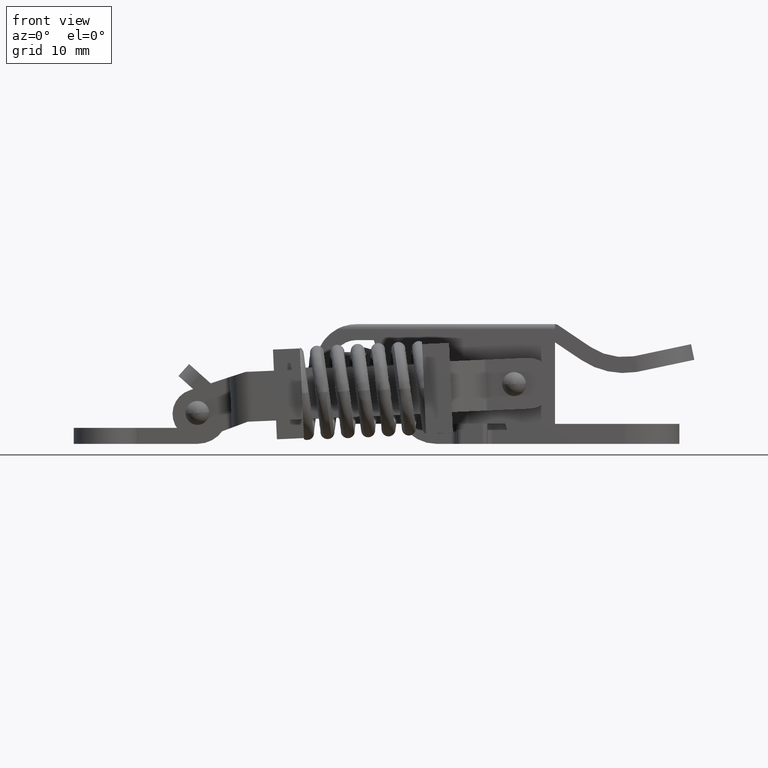
[diagram: clean part render]
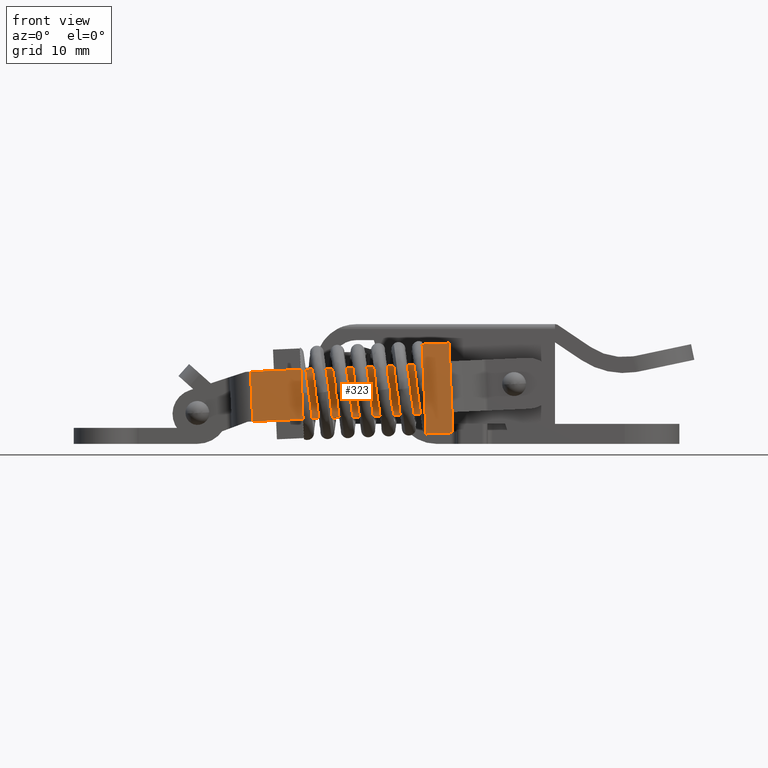
[diagram: same view with one face highlighted and labeled with its STEP entity id]
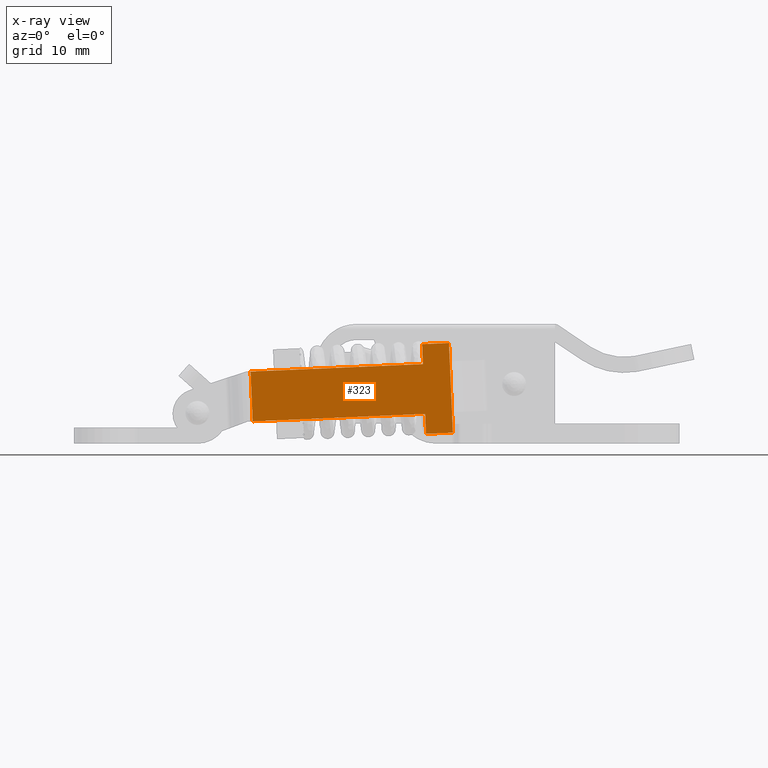
[diagram: x-ray of the same camera — body ghosted, the highlighted face saturated]
A machine part, front view. The second image highlights one B-rep face of the part: STEP entity #323.
The next image is the same camera in x-ray: the body ghosted, the highlighted face saturated — about 0% of this face is hidden behind the body in this view.
In plain terms, the highlighted planar face has unit normal (0, 1, 0).
Its self-contained STEP definition (entity closure, byte-faithful):
#323=ADVANCED_FACE('',(#949),#948,.F.);
#948=PLANE('',#4731);
#949=FACE_OUTER_BOUND('',#4732,.T.);
#4728=CARTESIAN_POINT('',(-1.53500000000E+01,5.39999999994E+00,1.99999999994E+00));
#4729=DIRECTION('',(1.00000000000E+00,0.00000000000E+00,-0.00000000000E+00));
#4730=DIRECTION('',(0.00000000000E+00,0.00000000000E+00,1.00000000000E+00));
#4731=AXIS2_PLACEMENT_3D('',#4728,#4729,#4730);
#4732=EDGE_LOOP('',(#12739,#12740,#12741,#12742,#12743,#12744,#12745,#12746));
#12739=ORIENTED_EDGE('',*,*,#14586,.T.);
#12740=ORIENTED_EDGE('',*,*,#14510,.T.);
#12741=ORIENTED_EDGE('',*,*,#14503,.T.);
#12742=ORIENTED_EDGE('',*,*,#14507,.T.);
#12743=ORIENTED_EDGE('',*,*,#14587,.T.);
#12744=ORIENTED_EDGE('',*,*,#14588,.T.);
#12745=ORIENTED_EDGE('',*,*,#14589,.T.);
#12746=ORIENTED_EDGE('',*,*,#14582,.F.);
#14503=EDGE_CURVE('',#15452,#15453,#15454,.T.);
#14507=EDGE_CURVE('',#15453,#15480,#15481,.T.);
#14510=EDGE_CURVE('',#15500,#15452,#15501,.T.);
#14582=EDGE_CURVE('',#15978,#15985,#15986,.T.);
#14586=EDGE_CURVE('',#15978,#15500,#16012,.T.);
#14587=EDGE_CURVE('',#15480,#16018,#16019,.T.);
#14588=EDGE_CURVE('',#16018,#16025,#16026,.T.);
#14589=EDGE_CURVE('',#16025,#15985,#16032,.T.);
#15452=VERTEX_POINT('',#21728);
#15453=VERTEX_POINT('',#21729);
#15454=LINE('',#21730,#21731);
#15480=VERTEX_POINT('',#21744);
#15481=LINE('',#21745,#21746);
#15500=VERTEX_POINT('',#21755);
#15501=LINE('',#21756,#21757);
#15978=VERTEX_POINT('',#22033);
#15985=VERTEX_POINT('',#22038);
#15986=LINE('',#22039,#22040);
#16012=LINE('',#22054,#22055);
#16018=VERTEX_POINT('',#22057);
#16019=LINE('',#22058,#22059);
#16025=VERTEX_POINT('',#22061);
#16026=LINE('',#22062,#22063);
#16032=LINE('',#22065,#22066);
#21728=CARTESIAN_POINT('',(-1.53500000000E+01,4.49999999994E+00,6.69999999995E+00));
#21729=CARTESIAN_POINT('',(-1.53500000000E+01,4.49999999994E+00,3.99999999995E+00));
#21730=CARTESIAN_POINT('',(-1.53500000000E+01,4.49999999994E+00,6.69999999995E+00));
#21731=VECTOR('',#21732,2.70000000000E+00);
#21732=DIRECTION('',(0.00000000000E+00,0.00000000000E+00,-1.00000000000E+00));
#21744=CARTESIAN_POINT('',(-1.53500000000E+01,-4.50000000006E+00,3.99999999995E+00));
#21745=CARTESIAN_POINT('',(-1.53500000000E+01,4.49999999994E+00,3.99999999995E+00));
#21746=VECTOR('',#21747,9.00000000000E+00);
#21747=DIRECTION('',(0.00000000000E+00,-1.00000000000E+00,0.00000000000E+00));
#21755=CARTESIAN_POINT('',(-1.53500000000E+01,2.49999999996E+00,6.69999999995E+00));
#21756=CARTESIAN_POINT('',(-1.53500000000E+01,2.49999999996E+00,6.69999999995E+00));
#21757=VECTOR('',#21758,1.99999999998E+00);
#21758=DIRECTION('',(0.00000000000E+00,1.00000000000E+00,0.00000000000E+00));
#22033=CARTESIAN_POINT('',(-1.53500000000E+01,2.49999999998E+00,2.40000000000E+01));
#22038=CARTESIAN_POINT('',(-1.53500000000E+01,-2.50000000002E+00,2.40000000000E+01));
#22039=CARTESIAN_POINT('',(-1.53500000000E+01,2.49999999998E+00,2.40000000000E+01));
#22040=VECTOR('',#22041,5.00000000000E+00);
#22041=DIRECTION('',(0.00000000000E+00,-1.00000000000E+00,0.00000000000E+00));
#22054=CARTESIAN_POINT('',(-1.53500000000E+01,2.49999999998E+00,2.40000000000E+01));
#22055=VECTOR('',#22056,1.73000000000E+01);
#22056=DIRECTION('',(0.00000000000E+00,-1.15606945981E-12,-1.00000000000E+00));
#22057=CARTESIAN_POINT('',(-1.53500000000E+01,-4.50000000006E+00,6.69999999995E+00));
#22058=CARTESIAN_POINT('',(-1.53500000000E+01,-4.50000000006E+00,3.99999999995E+00));
#22059=VECTOR('',#22060,2.70000000000E+00);
#22060=DIRECTION('',(0.00000000000E+00,0.00000000000E+00,1.00000000000E+00));
#22061=CARTESIAN_POINT('',(-1.53500000000E+01,-2.50000000004E+00,6.69999999995E+00));
#22062=CARTESIAN_POINT('',(-1.53500000000E+01,-4.50000000006E+00,6.69999999995E+00));
#22063=VECTOR('',#22064,2.00000000002E+00);
#22064=DIRECTION('',(0.00000000000E+00,1.00000000000E+00,0.00000000000E+00));
#22065=CARTESIAN_POINT('',(-1.53500000000E+01,-2.50000000004E+00,6.69999999995E+00));
#22066=VECTOR('',#22067,1.73000000000E+01);
#22067=DIRECTION('',(0.00000000000E+00,1.15606945981E-12,1.00000000000E+00));